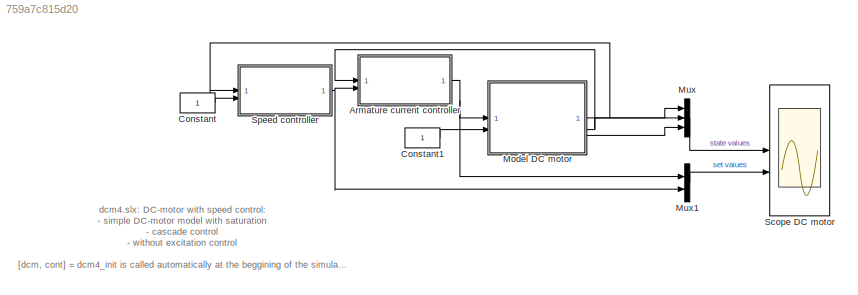
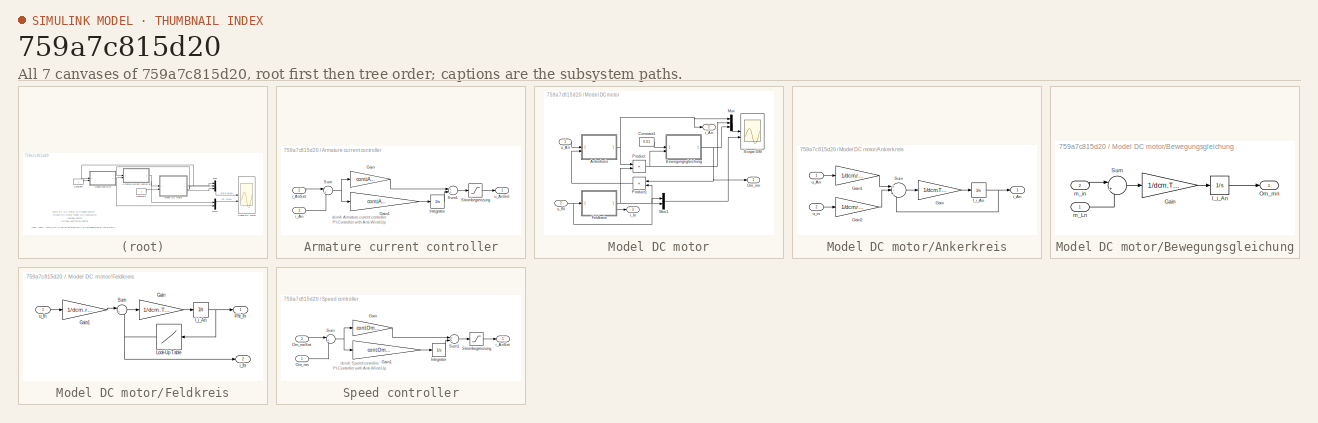
[diagram: thumbnail index - all 7 canvases of the model, root first then tree order]
MODEL slx_759a7c815d20
KIND model
CONFIG AbsTol = auto
CONFIG EnableMultiTasking = on
CONFIG FixedStep = auto
CONFIG InitFcn = [dcm, cont] = dcm4_init;
CONFIG MaxStep = auto
CONFIG MinStep = auto
CONFIG RelTol = 1e-3
CONFIG SampleTimeConstraint = Unconstrained
CONFIG SolverName = ode45
CONFIG StartTime = 0.0
CONFIG StopTime = 2
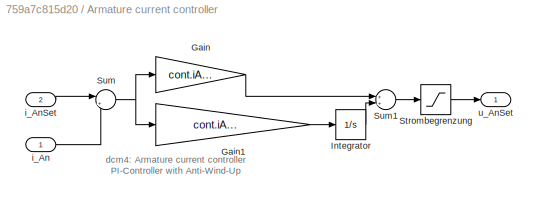
BLOCK [SubSystem] Armature current controller
BLOCK [Gain] Armature current controller/Gain
  Gain = cont.iA.K
  OutDataTypeStr = Inherit: Same as input
  ParamDataTypeStr = Inherit: Same as input
  SaturateOnIntegerOverflow = on
BLOCK [Gain] Armature current controller/Gain1
  Gain = cont.iA.K/cont.iA.TN
  OutDataTypeStr = Inherit: Same as input
  ParamDataTypeStr = Inherit: Same as input
  SaturateOnIntegerOverflow = on
BLOCK [Integrator] Armature current controller/Integrator
  LimitOutput = on
  LowerSaturationLimit = -cont.u_Anmax
  UpperSaturationLimit = cont.u_Anmax
BLOCK [Saturate] Armature current controller/Strombegrenzung
  LowerLimit = -cont.u_Anmax
  UpperLimit = cont.u_Anmax
BLOCK [Sum] Armature current controller/Sum
  InputSameDT = on
  Inputs = |+-
  OutDataTypeStr = Inherit: Same as first input
  SaturateOnIntegerOverflow = on
BLOCK [Sum] Armature current controller/Sum1
  InputSameDT = on
  OutDataTypeStr = Inherit: Same as first input
  SaturateOnIntegerOverflow = on
BLOCK [Inport] Armature current controller/i_An
BLOCK [Inport] Armature current controller/i_AnSet
  Port = 2
BLOCK [Outport] Armature current controller/u_AnSet
  InitialOutput = 0
BLOCK [Constant] Constant
BLOCK [Constant] Constant1
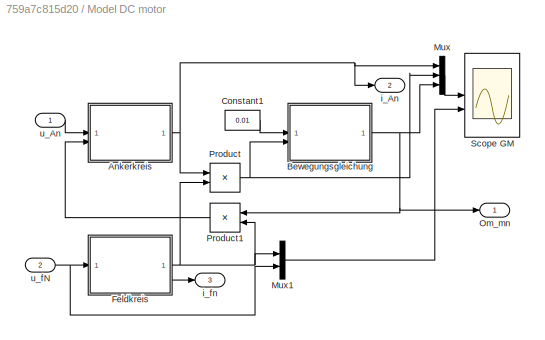
BLOCK [SubSystem] Model DC motor
BLOCK [SubSystem] Model DC motor/Ankerkreis
BLOCK [Gain] Model DC motor/Ankerkreis/Gain
  Gain = 1/dcm.T_A
  OutDataTypeStr = Inherit: Same as input
  ParamDataTypeStr = Inherit: Same as input
  SaturateOnIntegerOverflow = on
BLOCK [Gain] Model DC motor/Ankerkreis/Gain1
  Gain = 1/dcm.r_A
  OutDataTypeStr = Inherit: Same as input
  ParamDataTypeStr = Inherit: Same as input
  SaturateOnIntegerOverflow = on
BLOCK [Gain] Model DC motor/Ankerkreis/Gain2
  Gain = 1/dcm.r_A
  OutDataTypeStr = Inherit: Same as input
  ParamDataTypeStr = Inherit: Same as input
  SaturateOnIntegerOverflow = on
BLOCK [Integrator] Model DC motor/Ankerkreis/I_i_An
BLOCK [Sum] Model DC motor/Ankerkreis/Sum
  InputSameDT = on
  Inputs = +--
  OutDataTypeStr = Inherit: Same as first input
  SaturateOnIntegerOverflow = on
BLOCK [Outport] Model DC motor/Ankerkreis/i_An
BLOCK [Inport] Model DC motor/Ankerkreis/u_An
BLOCK [Inport] Model DC motor/Ankerkreis/u_in
  Port = 2
BLOCK [SubSystem] Model DC motor/Bewegungsgleichung
BLOCK [Gain] Model DC motor/Bewegungsgleichung/Gain
  Gain = 1/dcm.T_J
  OutDataTypeStr = Inherit: Same as input
  ParamDataTypeStr = Inherit: Same as input
  SaturateOnIntegerOverflow = on
BLOCK [Integrator] Model DC motor/Bewegungsgleichung/I_i_An
  InitialCondition = dcm.Om_m0
BLOCK [Outport] Model DC motor/Bewegungsgleichung/Om_mn
BLOCK [Sum] Model DC motor/Bewegungsgleichung/Sum
  InputSameDT = on
  Inputs = |+-
  OutDataTypeStr = Inherit: Same as first input
  SaturateOnIntegerOverflow = on
BLOCK [Inport] Model DC motor/Bewegungsgleichung/m_Ln
BLOCK [Inport] Model DC motor/Bewegungsgleichung/m_in
  Port = 2
BLOCK [Constant] Model DC motor/Constant1
  Value = 0.01
BLOCK [SubSystem] Model DC motor/Feldkreis
BLOCK [Gain] Model DC motor/Feldkreis/Gain
  Gain = 1/dcm.T_f
  OutDataTypeStr = Inherit: Same as input
  ParamDataTypeStr = Inherit: Same as input
  SaturateOnIntegerOverflow = on
BLOCK [Gain] Model DC motor/Feldkreis/Gain1
  Gain = 1/dcm.r_f
  OutDataTypeStr = Inherit: Same as input
  ParamDataTypeStr = Inherit: Same as input
  SaturateOnIntegerOverflow = on
BLOCK [Integrator] Model DC motor/Feldkreis/I_i_An
  InitialCondition = dcm.Pfi_f0
BLOCK [Lookup] Model DC motor/Feldkreis/Look-Up Table
  InputValues = dcm.Phi_f
  Table = dcm.i_f
BLOCK [Outport] Model DC motor/Feldkreis/Phi_fn
BLOCK [Sum] Model DC motor/Feldkreis/Sum
  InputSameDT = on
  Inputs = |+-
  OutDataTypeStr = Inherit: Same as first input
  SaturateOnIntegerOverflow = on
BLOCK [Outport] Model DC motor/Feldkreis/i_fn
  Port = 2
BLOCK [Inport] Model DC motor/Feldkreis/u_fn
BLOCK [Mux] Model DC motor/Mux
  DisplayOption = bar
  Inputs = 3
BLOCK [Mux] Model DC motor/Mux1
  DisplayOption = bar
  Inputs = 2
BLOCK [Outport] Model DC motor/Om_mn
BLOCK [Product] Model DC motor/Product
  InputSameDT = on
  OutDataTypeStr = Inherit: Same as first input
  SaturateOnIntegerOverflow = on
BLOCK [Product] Model DC motor/Product1
  InputSameDT = on
  OutDataTypeStr = Inherit: Same as first input
  SaturateOnIntegerOverflow = on
BLOCK [Scope] Model DC motor/Scope GM
  Floating = off
  NumInputPorts = 2
  ScopeSpecificationString = C++SS(StrPVP('Location','[18, 185, 521, 811]'),StrPVP('Open','off'),StrPVP('ZoomMode','xonly'),MxPVP('AxesTitles',54,'struct(''axes1'',''%<SignalLabel>'',''axes2'',''%<SignalLabel>'')'),MxPVP('ScopeGraphics',57,'struct(''FigureColor'',''[0.5 0.5 0.5]'',''AxesColor'',''[0 0 0]'',''AxesTickColor'',''[1 1 1]'',''LineColors'',''[1 1 0;1 0 1;0 1 1;1 0 0;0 1 0;0 0 1]'',''LineStyles'',''-|-|-|-|-|-'',''L...<+362ch>
BLOCK [Outport] Model DC motor/i_An
  Port = 2
BLOCK [Outport] Model DC motor/i_fn
  Port = 3
BLOCK [Inport] Model DC motor/u_An
BLOCK [Inport] Model DC motor/u_fN
  Port = 2
BLOCK [Mux] Mux
  DisplayOption = bar
  Inputs = 3
BLOCK [Mux] Mux1
  DisplayOption = bar
  Inputs = 2
BLOCK [Scope] Scope DC motor
  Floating = off
  NumInputPorts = 2
  ScopeSpecificationString = Simulink.scopes.TimeScopeBlockCfg('CurrentConfiguration', extmgr.ConfigurationSet(extmgr.Configuration('Core','General UI',true),extmgr.Configuration('Core','Source UI',true),extmgr.Configuration('Sources','WiredSimulink',true,'DataLoggingVariableName','ScopeData1','DataLoggingSaveFormat','StructureWithTime','DataLoggingLimitDataPoints',true,'DataLoggingDecimation','1','DataLoggingDecimateData',tr...<+2829ch>
BLOCK [SubSystem] Speed controller
BLOCK [Gain] Speed controller/Gain
  Gain = cont.Om.K
  OutDataTypeStr = Inherit: Same as input
  ParamDataTypeStr = Inherit: Same as input
  SaturateOnIntegerOverflow = on
BLOCK [Gain] Speed controller/Gain1
  Gain = cont.Om.K/cont.Om.TN
  OutDataTypeStr = Inherit: Same as input
  ParamDataTypeStr = Inherit: Same as input
  SaturateOnIntegerOverflow = on
BLOCK [Integrator] Speed controller/Integrator
  LimitOutput = on
  LowerSaturationLimit = -cont.i_Anmax
  UpperSaturationLimit = cont.i_Anmax
BLOCK [Inport] Speed controller/Om_mn
BLOCK [Inport] Speed controller/Om_mnSet
  Port = 2
BLOCK [Saturate] Speed controller/Strombegrenzung
  LowerLimit = -cont.i_Anmax
  UpperLimit = cont.i_Anmax
BLOCK [Sum] Speed controller/Sum
  InputSameDT = on
  Inputs = |+-
  OutDataTypeStr = Inherit: Same as first input
  SaturateOnIntegerOverflow = on
BLOCK [Sum] Speed controller/Sum1
  InputSameDT = on
  OutDataTypeStr = Inherit: Same as first input
  SaturateOnIntegerOverflow = on
BLOCK [Outport] Speed controller/i_AnSet
  InitialOutput = 0
ANNOTATION (root): dcm4.slx: DC-motor with speed control: - simple DC-motor model with saturation - cascade control - without excitation control [dcm, cont] = dcm4_init is called automatically at the beggining of the simulation. Task: During the start-up the armature current is lower than the set value. Why?
ANNOTATION Armature current controller: dcm4: Armature current controller PI-Controller with Anti-Wind-Up
ANNOTATION Speed controller: dcm4: Speed controller PI-Controller with Anti-Wind-Up
LINE Armature current controller/Gain1:1 -> Armature current controller/Integrator:1
LINE Armature current controller/Gain:1 -> Armature current controller/Sum1:1
LINE Armature current controller/Integrator:1 -> Armature current controller/Sum1:2
LINE Armature current controller/Strombegrenzung:1 -> Armature current controller/u_AnSet:1
LINE Armature current controller/Sum1:1 -> Armature current controller/Strombegrenzung:1
NET Armature current controller/Sum:1 -> Armature current controller/Gain1:1, Armature current controller/Gain:1
LINE Armature current controller/i_An:1 -> Armature current controller/Sum:2
LINE Armature current controller/i_AnSet:1 -> Armature current controller/Sum:1
NET Armature current controller:1 -> Model DC motor:1, Mux1:1
LINE Constant1:1 -> Model DC motor:2
LINE Constant:1 -> Speed controller:2
LINE Model DC motor/Ankerkreis/Gain1:1 -> Model DC motor/Ankerkreis/Sum:1
LINE Model DC motor/Ankerkreis/Gain2:1 -> Model DC motor/Ankerkreis/Sum:2
LINE Model DC motor/Ankerkreis/Gain:1 -> Model DC motor/Ankerkreis/I_i_An:1
NET Model DC motor/Ankerkreis/I_i_An:1 -> Model DC motor/Ankerkreis/Sum:3, Model DC motor/Ankerkreis/i_An:1
LINE Model DC motor/Ankerkreis/Sum:1 -> Model DC motor/Ankerkreis/Gain:1
LINE Model DC motor/Ankerkreis/u_An:1 -> Model DC motor/Ankerkreis/Gain1:1
LINE Model DC motor/Ankerkreis/u_in:1 -> Model DC motor/Ankerkreis/Gain2:1
NET Model DC motor/Ankerkreis:1 -> Model DC motor/Mux:1, Model DC motor/Product:1, Model DC motor/i_An:1
LINE Model DC motor/Bewegungsgleichung/Gain:1 -> Model DC motor/Bewegungsgleichung/I_i_An:1
LINE Model DC motor/Bewegungsgleichung/I_i_An:1 -> Model DC motor/Bewegungsgleichung/Om_mn:1
LINE Model DC motor/Bewegungsgleichung/Sum:1 -> Model DC motor/Bewegungsgleichung/Gain:1
LINE Model DC motor/Bewegungsgleichung/m_Ln:1 -> Model DC motor/Bewegungsgleichung/Sum:2
LINE Model DC motor/Bewegungsgleichung/m_in:1 -> Model DC motor/Bewegungsgleichung/Sum:1
NET Model DC motor/Bewegungsgleichung:1 -> Model DC motor/Mux:3, Model DC motor/Om_mn:1, Model DC motor/Product1:1
LINE Model DC motor/Constant1:1 -> Model DC motor/Bewegungsgleichung:1
LINE Model DC motor/Feldkreis/Gain1:1 -> Model DC motor/Feldkreis/Sum:1
LINE Model DC motor/Feldkreis/Gain:1 -> Model DC motor/Feldkreis/I_i_An:1
NET Model DC motor/Feldkreis/I_i_An:1 -> Model DC motor/Feldkreis/Look-Up Table:1, Model DC motor/Feldkreis/Phi_fn:1
NET Model DC motor/Feldkreis/Look-Up Table:1 -> Model DC motor/Feldkreis/Sum:2, Model DC motor/Feldkreis/i_fn:1
LINE Model DC motor/Feldkreis/Sum:1 -> Model DC motor/Feldkreis/Gain:1
LINE Model DC motor/Feldkreis/u_fn:1 -> Model DC motor/Feldkreis/Gain1:1
NET Model DC motor/Feldkreis:1 -> Model DC motor/Mux1:1, Model DC motor/Product1:2, Model DC motor/Product:2
LINE Model DC motor/Feldkreis:2 -> Model DC motor/i_fn:1
LINE Model DC motor/Mux1:1 -> Model DC motor/Scope GM:2
LINE Model DC motor/Mux:1 -> Model DC motor/Scope GM:1
LINE Model DC motor/Product1:1 -> Model DC motor/Ankerkreis:2
NET Model DC motor/Product:1 -> Model DC motor/Bewegungsgleichung:2, Model DC motor/Mux:2
LINE Model DC motor/u_An:1 -> Model DC motor/Ankerkreis:1
NET Model DC motor/u_fN:1 -> Model DC motor/Feldkreis:1, Model DC motor/Mux1:2
NET Model DC motor:1 -> Mux:1, Speed controller:1
NET Model DC motor:2 -> Armature current controller:1, Mux:2
LINE Model DC motor:3 -> Mux:3
LINE Mux1:1 -> Scope DC motor:2
LINE Mux:1 -> Scope DC motor:1
LINE Speed controller/Gain1:1 -> Speed controller/Integrator:1
LINE Speed controller/Gain:1 -> Speed controller/Sum1:1
LINE Speed controller/Integrator:1 -> Speed controller/Sum1:2
LINE Speed controller/Om_mn:1 -> Speed controller/Sum:2
LINE Speed controller/Om_mnSet:1 -> Speed controller/Sum:1
LINE Speed controller/Strombegrenzung:1 -> Speed controller/i_AnSet:1
LINE Speed controller/Sum1:1 -> Speed controller/Strombegrenzung:1
NET Speed controller/Sum:1 -> Speed controller/Gain1:1, Speed controller/Gain:1
NET Speed controller:1 -> Armature current controller:2, Mux1:2
note: NET lines group one-source signal fan-out (src -> all destinations, sorted); 1:1 wires keep LINE
